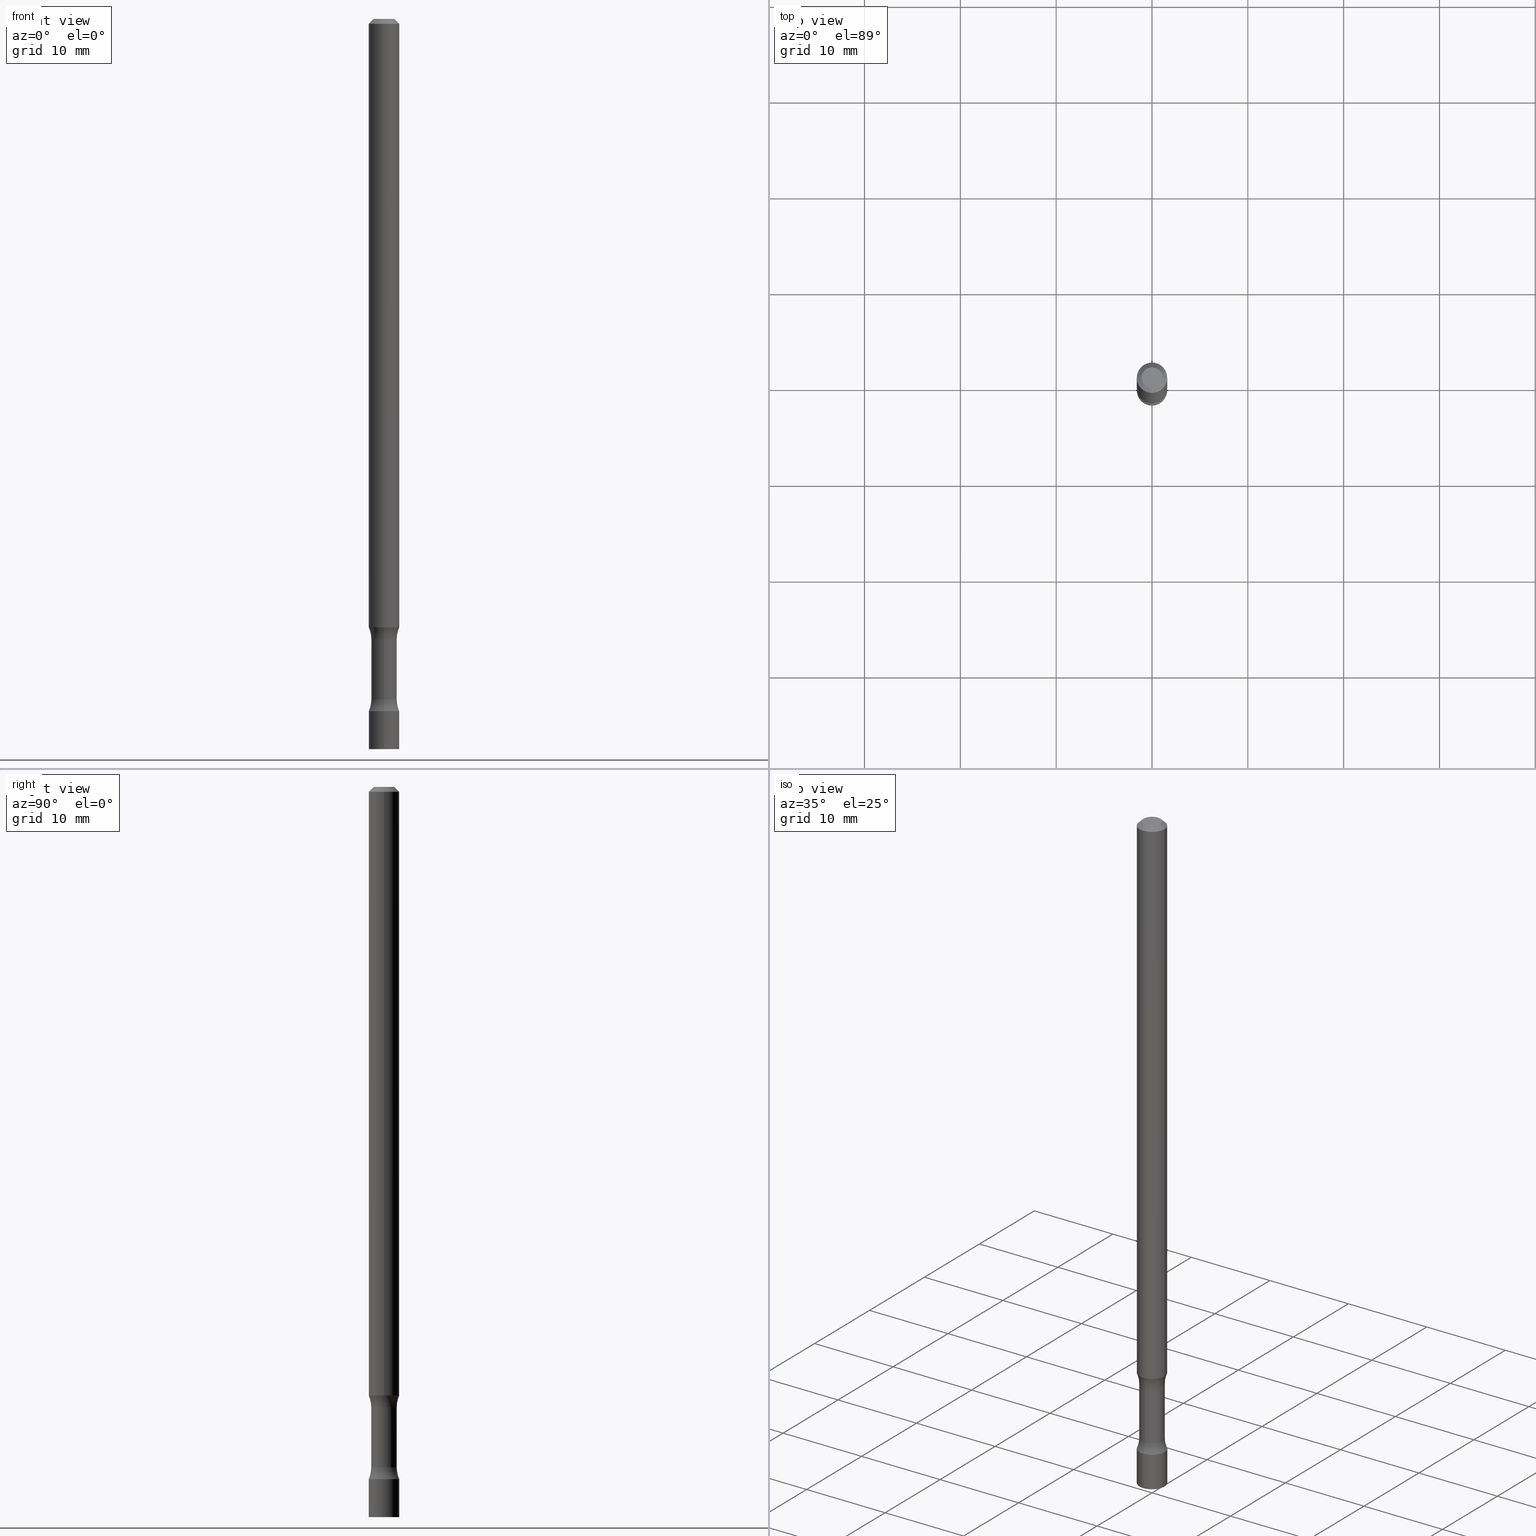
[diagram: canonical four-view strip — front | top / right | iso, engineering-drawing reading convention]
A machine part, canonical four-view strip (front | top / right | iso — engineering-drawing reading convention). The complete STEP part file that produces these views, byte-faithful:
ISO-10303-21;
HEADER;
FILE_DESCRIPTION (( 'STEP AP203' ),
    '1' );
FILE_NAME ('32725.STEP',
    '2024-03-11T13:17:24',
    ( '' ),
    ( '' ),
    'SwSTEP 2.0',
    'SolidWorks 2023',
    '' );
FILE_SCHEMA (( 'CONFIG_CONTROL_DESIGN' ));
ENDSEC;

DATA;
#1 = AXIS2_PLACEMENT_3D ( 'NONE', #157, #485, #435 ) ;
#2 = AXIS2_PLACEMENT_3D ( 'NONE', #331, #494, #288 ) ;
#3 = LINE ( 'NONE', #73, #339 ) ;
#4 = ORIENTED_EDGE ( 'NONE', *, *, #465, .F. ) ;
#5 = CARTESIAN_POINT ( 'NONE',  ( -4.287811248606471121E-16, -0.06250000000000692502, -2.499999999999999556 ) ) ;
#6 = ORIENTED_EDGE ( 'NONE', *, *, #419, .F. ) ;
#7 = DIRECTION ( 'NONE',  ( 6.982962677686266711E-15, 1.000000000000000000, -6.288230848226830672E-15 ) ) ;
#8 = DIRECTION ( 'NONE',  ( -2.438088387897960049E-29, 3.491481338843145188E-15, 1.000000000000000000 ) ) ;
#9 = DIRECTION ( 'NONE',  ( 4.925090618987720607E-30, -6.288230848226830672E-15, -1.000000000000000000 ) ) ;
#10 = AXIS2_PLACEMENT_3D ( 'NONE', #463, #468, #283 ) ;
#11 = LINE ( 'NONE', #237, #386 ) ;
#12 = CARTESIAN_POINT ( 'NONE',  ( -0.06249999999999984734, 4.440892098500615315E-16, -3.074334431409308406E-30 ) ) ;
#13 = MANIFOLD_SOLID_BREP ( 'Body-Move/Copy2[4]', #159 ) ;
#14 = MANIFOLD_SOLID_BREP ( 'Body-Move/Copy2[2]', #343 ) ;
#15 = CARTESIAN_POINT ( 'NONE',  ( 4.440892098501351914E-16, 0.06249999999998967493, -3.000000000000000444 ) ) ;
#16 = EDGE_LOOP ( 'NONE', ( #140, #335, #356, #487 ) ) ;
#17 = CARTESIAN_POINT ( 'NONE',  ( 6.774435598487342203E-29, -7.782452287889203517E-15, -2.500000000000000000 ) ) ;
#18 = ORIENTED_EDGE ( 'NONE', *, *, #465, .T. ) ;
#19 = DIRECTION ( 'NONE',  ( 2.441718902161944862E-29, -3.496851414835638223E-15, -1.000000000000000000 ) ) ;
#20 = ORIENTED_EDGE ( 'NONE', *, *, #276, .T. ) ;
#21 = APPLICATION_CONTEXT ( 'configuration controlled 3d designs of mechanical parts and assemblies' ) ;
#22 = EDGE_CURVE ( 'NONE', #36, #126, #47, .T. ) ;
#23 = DIRECTION ( 'NONE',  ( 4.925090618987720607E-30, -6.288230848226830672E-15, -1.000000000000000000 ) ) ;
#24 = CARTESIAN_POINT ( 'NONE',  ( 6.774435598487342203E-29, -7.782452287889203517E-15, -2.500000000000000000 ) ) ;
#25 = CIRCLE ( 'NONE', #392, 0.06250000000000016653 ) ;
#26 = CIRCLE ( 'NONE', #70, 0.06250000000000016653 ) ;
#27 = VERTEX_POINT ( 'NONE', #400 ) ;
#28 = PERSON_AND_ORGANIZATION ( #409, #289 ) ;
#29 = CARTESIAN_POINT ( 'NONE',  ( -3.601761448829314848E-16, -0.05250000000001038558, -2.999999999999999556 ) ) ;
#30 = ORIENTED_EDGE ( 'NONE', *, *, #282, .F. ) ;
#31 =( CONVERSION_BASED_UNIT ( 'INCH', #382 ) LENGTH_UNIT ( ) NAMED_UNIT ( #222 ) );
#32 = EDGE_CURVE ( 'NONE', #105, #263, #11, .T. ) ;
#33 = COORDINATED_UNIVERSAL_TIME_OFFSET ( 5, 0, .BEHIND. ) ;
#34 = PERSON_AND_ORGANIZATION ( #409, #289 ) ;
#35 = DIRECTION ( 'NONE',  ( 4.925090618987720607E-30, -6.288230848226830672E-15, -1.000000000000000000 ) ) ;
#36 = VERTEX_POINT ( 'NONE', #88 ) ;
#37 = PERSON_AND_ORGANIZATION ( #409, #289 ) ;
#38 = CIRCLE ( 'NONE', #69, 0.04249999999999975325 ) ;
#39 = CARTESIAN_POINT ( 'NONE',  ( -1.217738394604372881E-15, -0.1775000000000072353, -2.548989794855662794 ) ) ;
#40 = ORIENTED_EDGE ( 'NONE', *, *, #378, .F. ) ;
#41 = PLANE ( 'NONE',  #181 ) ;
#42 = CYLINDRICAL_SURFACE ( 'NONE', #490, 0.06249999999999984734 ) ;
#43 = DIRECTION ( 'NONE',  ( 6.982962677686266711E-15, 1.000000000000000000, -6.288230848226830672E-15 ) ) ;
#44 = DIRECTION ( 'NONE',  ( 6.982962677686265922E-15, 1.000000000000000000, -6.288230848226830672E-15 ) ) ;
#45 = ADVANCED_FACE ( 'NONE', ( #495 ), #185, .F. ) ;
#46 = ORIENTED_EDGE ( 'NONE', *, *, #282, .T. ) ;
#47 = CIRCLE ( 'NONE', #251, 0.1249999999999999584 ) ;
#48 = CIRCLE ( 'NONE', #308, 0.06249999999999920203 ) ;
#49 = DIRECTION ( 'NONE',  ( -2.445468806185136877E-29, 3.491481338843145188E-15, 1.000000000000000000 ) ) ;
#50 = AXIS2_PLACEMENT_3D ( 'NONE', #127, #453, #361 ) ;
#51 = AXIS2_PLACEMENT_3D ( 'NONE', #459, #94, #338 ) ;
#52 = ORIENTED_EDGE ( 'NONE', *, *, #200, .T. ) ;
#53 = EDGE_LOOP ( 'NONE', ( #196, #20, #497, #362 ) ) ;
#54 = CARTESIAN_POINT ( 'NONE',  ( 0.000000000000000000, 0.000000000000000000, 0.000000000000000000 ) ) ;
#55 = DIRECTION ( 'NONE',  ( 0.7071067811865471286, -7.319954787623254468E-15, -0.7071067811865479058 ) ) ;
#56 = CYLINDRICAL_SURFACE ( 'NONE', #239, 0.06249999999999984734 ) ;
#57 = CIRCLE ( 'NONE', #278, 0.06250000000000016653 ) ;
#58 = VECTOR ( 'NONE', #205, 39.37007874015748143 ) ;
#59 = EDGE_CURVE ( 'NONE', #248, #436, #38, .T. ) ;
#60 = CARTESIAN_POINT ( 'NONE',  ( 0.04249999999999975325, -3.950909582714350189E-16, -5.122214988120251946E-17 ) ) ;
#61 = DIRECTION ( 'NONE',  ( 6.982962677686266711E-15, 1.000000000000000000, -8.741913579725618633E-15 ) ) ;
#62 = COORDINATED_UNIVERSAL_TIME_OFFSET ( 5, 0, .BEHIND. ) ;
#63 = AXIS2_PLACEMENT_3D ( 'NONE', #143, #229, #393 ) ;
#64 = MECHANICAL_CONTEXT ( 'NONE', #21, 'mechanical' ) ;
#65 = VERTEX_POINT ( 'NONE', #189 ) ;
#66 = ADVANCED_FACE ( 'NONE', ( #398 ), #429, .F. ) ;
#67 = PERSON_AND_ORGANIZATION_ROLE ( 'creator' ) ;
#68 = DIRECTION ( 'NONE',  ( -1.000000000000000000, 6.982962677686265922E-15, -4.876176775795935793E-29 ) ) ;
#69 = AXIS2_PLACEMENT_3D ( 'NONE', #312, #110, #74 ) ;
#70 = AXIS2_PLACEMENT_3D ( 'NONE', #492, #420, #61 ) ;
#71 = APPROVAL_PERSON_ORGANIZATION ( #139, #359, #501 ) ;
#72 = ORIENTED_EDGE ( 'NONE', *, *, #32, .T. ) ;
#73 = CARTESIAN_POINT ( 'NONE',  ( -4.364351673553928527E-16, -0.06250000000000016653, 2.185532134272280299E-16 ) ) ;
#74 = DIRECTION ( 'NONE',  ( 1.000000000000000000, -6.982962677686265922E-15, 4.870577812114112753E-29 ) ) ;
#75 = APPROVAL_STATUS ( 'not_yet_approved' ) ;
#76 = AXIS2_PLACEMENT_3D ( 'NONE', #352, #275, #80 ) ;
#77 =( GEOMETRIC_REPRESENTATION_CONTEXT ( 3 ) GLOBAL_UNCERTAINTY_ASSIGNED_CONTEXT ( ( #414 ) ) GLOBAL_UNIT_ASSIGNED_CONTEXT ( ( #31, #260, #427 ) ) REPRESENTATION_CONTEXT ( 'NONE', 'WORKASPACE' ) );
#78 = DIRECTION ( 'NONE',  ( -2.445468806185136597E-29, 3.491481338843145583E-15, 1.000000000000000000 ) ) ;
#79 = APPROVAL_ROLE ( '' ) ;
#80 = DIRECTION ( 'NONE',  ( -6.982962677686266711E-15, -1.000000000000000000, 3.496851414835639012E-15 ) ) ;
#81 = CARTESIAN_POINT ( 'NONE',  ( 0.06249999999999967387, -4.986107516375813584E-16, -0.02000000000000000042 ) ) ;
#82 = EDGE_LOOP ( 'NONE', ( #93, #130 ) ) ;
#83 = EDGE_LOOP ( 'NONE', ( #18, #503 ) ) ;
#84 = VECTOR ( 'NONE', #202, 39.37007874015748143 ) ;
#85 = CYLINDRICAL_SURFACE ( 'NONE', #170, 0.06250000000000016653 ) ;
#86 = CARTESIAN_POINT ( 'NONE',  ( 4.440892098501371635E-16, 0.06249999999999023004, -2.843800000000000328 ) ) ;
#87 = LINE ( 'NONE', #363, #84 ) ;
#88 = CARTESIAN_POINT ( 'NONE',  ( 4.364351673554629134E-16, 0.06249999999999029943, -2.843800000000000772 ) ) ;
#89 = ORIENTED_EDGE ( 'NONE', *, *, #369, .T. ) ;
#90 = PLANE ( 'NONE',  #244 ) ;
#91 = AXIS2_PLACEMENT_3D ( 'NONE', #321, #437, #7 ) ;
#92 = VERTEX_POINT ( 'NONE', #351 ) ;
#93 = ORIENTED_EDGE ( 'NONE', *, *, #394, .F. ) ;
#94 = DIRECTION ( 'NONE',  ( -2.441718902161944862E-29, 3.496851414835638617E-15, 1.000000000000000000 ) ) ;
#95 = ORIENTED_EDGE ( 'NONE', *, *, #147, .F. ) ;
#96 = CARTESIAN_POINT ( 'NONE',  ( 6.954424191029292150E-29, -9.929074631402139706E-15, -2.843800000000000328 ) ) ;
#97 = ORIENTED_EDGE ( 'NONE', *, *, #147, .T. ) ;
#98 = APPLICATION_PROTOCOL_DEFINITION ( 'international standard', 'config_control_design', 1994, #21 ) ;
#99 = VECTOR ( 'NONE', #232, 39.37007874015748143 ) ;
#100 = CC_DESIGN_SECURITY_CLASSIFICATION ( #220, ( #187 ) ) ;
#101 = DATE_AND_TIME ( #472, #203 ) ;
#102 = FACE_OUTER_BOUND ( 'NONE', #421, .T. ) ;
#103 = DATE_TIME_ROLE ( 'creation_date' ) ;
#104 = AXIS2_PLACEMENT_3D ( 'NONE', #233, #269, #43 ) ;
#105 = VERTEX_POINT ( 'NONE', #274 ) ;
#106 = AXIS2_PLACEMENT_3D ( 'NONE', #119, #447, #235 ) ;
#107 = SECURITY_CLASSIFICATION_LEVEL ( 'unclassified' ) ;
#108 = PRODUCT ( '32725', '32725', '', ( #64 ) ) ;
#109 = CARTESIAN_POINT ( 'NONE',  ( 4.890937612370273159E-31, -6.982962677686291609E-17, -0.02000000000000000042 ) ) ;
#110 = DIRECTION ( 'NONE',  ( -2.445468806185136597E-29, 3.491481338843145583E-15, 1.000000000000000000 ) ) ;
#111 = DIRECTION ( 'NONE',  ( 2.445468806185136597E-29, -3.491481338843145583E-15, -1.000000000000000000 ) ) ;
#112 = FACE_OUTER_BOUND ( 'NONE', #372, .T. ) ;
#113 = DIRECTION ( 'NONE',  ( 4.925090618987715002E-30, -6.288230848226830672E-15, -1.000000000000000000 ) ) ;
#114 = CIRCLE ( 'NONE', #153, 0.05249999999999904049 ) ;
#115 = AXIS2_PLACEMENT_3D ( 'NONE', #161, #207, #245 ) ;
#116 = DIRECTION ( 'NONE',  ( 1.000000000000000000, -6.982962677686266711E-15, 4.876176775795935793E-29 ) ) ;
#117 = ADVANCED_FACE ( 'NONE', ( #478 ), #353, .T. ) ;
#118 = APPROVAL ( #75, 'UNSPECIFIED' ) ;
#119 = CARTESIAN_POINT ( 'NONE',  ( 6.113672015462842613E-29, -8.728703347107864943E-15, -2.500000000000000000 ) ) ;
#120 = AXIS2_PLACEMENT_3D ( 'NONE', #152, #319, #444 ) ;
#121 = AXIS2_PLACEMENT_3D ( 'NONE', #39, #188, #348 ) ;
#122 = DIRECTION ( 'NONE',  ( -0.7071067811865471286, 2.468850131082252722E-15, -0.7071067811865479058 ) ) ;
#123 = CARTESIAN_POINT ( 'NONE',  ( 7.020690129436727953E-29, -1.092656771200262122E-14, -3.000000000000000444 ) ) ;
#124 = CARTESIAN_POINT ( 'NONE',  ( 0.000000000000000000, 0.000000000000000000, 0.000000000000000000 ) ) ;
#125 = EDGE_CURVE ( 'NONE', #322, #92, #327, .T. ) ;
#126 = VERTEX_POINT ( 'NONE', #383 ) ;
#127 = CARTESIAN_POINT ( 'NONE',  ( 6.954424191029292150E-29, -9.929074631402139706E-15, -2.843800000000000328 ) ) ;
#128 = CIRCLE ( 'NONE', #10, 0.06250000000000016653 ) ;
#129 = CIRCLE ( 'NONE', #51, 0.06250000000000016653 ) ;
#130 = ORIENTED_EDGE ( 'NONE', *, *, #368, .F. ) ;
#131 = PLANE ( 'NONE',  #210 ) ;
#132 = ORIENTED_EDGE ( 'NONE', *, *, #217, .T. ) ;
#133 = PERSON_AND_ORGANIZATION_ROLE ( 'design_supplier' ) ;
#134 = EDGE_CURVE ( 'NONE', #480, #433, #25, .T. ) ;
#135 = ORIENTED_EDGE ( 'NONE', *, *, #378, .T. ) ;
#136 = APPROVAL_DATE_TIME ( #101, #346 ) ;
#137 = ADVANCED_FACE ( 'NONE', ( #102 ), #464, .F. ) ;
#138 = ORIENTED_EDGE ( 'NONE', *, *, #200, .F. ) ;
#139 = PERSON_AND_ORGANIZATION ( #409, #289 ) ;
#140 = ORIENTED_EDGE ( 'NONE', *, *, #432, .F. ) ;
#141 = DIRECTION ( 'NONE',  ( 0.000000000000000000, 0.000000000000000000, 1.000000000000000000 ) ) ;
#142 = FACE_OUTER_BOUND ( 'NONE', #334, .T. ) ;
#143 = CARTESIAN_POINT ( 'NONE',  ( 6.919632296061163578E-29, -9.636286914249898201E-15, -2.794810205144336201 ) ) ;
#144 = SHAPE_DEFINITION_REPRESENTATION ( #341, #309 ) ;
#145 = DIRECTION ( 'NONE',  ( 6.982962677686266711E-15, 1.000000000000000000, -8.741913579725618633E-15 ) ) ;
#146 = EDGE_CURVE ( 'NONE', #65, #27, #209, .T. ) ;
#147 = EDGE_CURVE ( 'NONE', #27, #92, #379, .T. ) ;
#148 = ORIENTED_EDGE ( 'NONE', *, *, #368, .T. ) ;
#149 = CARTESIAN_POINT ( 'NONE',  ( 6.930003138792703270E-29, -9.621435277186618762E-15, -2.794810205144335757 ) ) ;
#150 = ORIENTED_EDGE ( 'NONE', *, *, #295, .T. ) ;
#151 = DIRECTION ( 'NONE',  ( 1.000000000000000000, -6.982962677686265922E-15, 4.876176775795935793E-29 ) ) ;
#152 = CARTESIAN_POINT ( 'NONE',  ( 7.020690129436727953E-29, -1.092656771200262122E-14, -3.000000000000000444 ) ) ;
#153 = AXIS2_PLACEMENT_3D ( 'NONE', #479, #261, #226 ) ;
#154 = DIRECTION ( 'NONE',  ( -2.445468806185136597E-29, 3.491481338843145583E-15, 1.000000000000000000 ) ) ;
#155 = ADVANCED_FACE ( 'NONE', ( #112 ), #41, .F. ) ;
#156 = ADVANCED_FACE ( 'NONE', ( #264 ), #201, .F. ) ;
#157 = CARTESIAN_POINT ( 'NONE',  ( 4.890937612370273159E-31, -6.982962677686291609E-17, -0.02000000000000000042 ) ) ;
#158 = CARTESIAN_POINT ( 'NONE',  ( -0.06249999999999967387, 3.666055405785264484E-16, -0.02000000000000000042 ) ) ;
#159 = CLOSED_SHELL ( 'NONE', ( #117, #156, #179, #66, #45, #381, #253, #406 ) ) ;
#160 = CIRCLE ( 'NONE', #318, 0.06249999999999967387 ) ;
#161 = CARTESIAN_POINT ( 'NONE',  ( 1.252621697202263706E-45, -1.788411804456536750E-31, -5.122214988120493535E-17 ) ) ;
#162 = DIRECTION ( 'NONE',  ( -1.000000000000000000, 6.982962677686265922E-15, -4.883557194083112901E-29 ) ) ;
#163 = EDGE_CURVE ( 'NONE', #417, #311, #128, .T. ) ;
#164 = CARTESIAN_POINT ( 'NONE',  ( 7.325156706485834866E-29, -1.049055424450691625E-14, -3.000000000000000444 ) ) ;
#165 = ORIENTED_EDGE ( 'NONE', *, *, #350, .F. ) ;
#166 = FACE_OUTER_BOUND ( 'NONE', #16, .T. ) ;
#167 = VERTEX_POINT ( 'NONE', #413 ) ;
#168 = DIRECTION ( 'NONE',  ( 6.982962677686266711E-15, 1.000000000000000000, -8.741913579725754317E-15 ) ) ;
#169 = AXIS2_PLACEMENT_3D ( 'NONE', #252, #385, #214 ) ;
#170 = AXIS2_PLACEMENT_3D ( 'NONE', #54, #240, #408 ) ;
#171 = EDGE_CURVE ( 'NONE', #433, #480, #287, .T. ) ;
#172 = DIRECTION ( 'NONE',  ( 2.438088387897960049E-29, -3.491481338843145188E-15, -1.000000000000000000 ) ) ;
#173 = ORIENTED_EDGE ( 'NONE', *, *, #451, .F. ) ;
#174 = APPROVAL_STATUS ( 'not_yet_approved' ) ;
#175 = CARTESIAN_POINT ( 'NONE',  ( 6.798563516394318828E-29, -8.090511427148895302E-15, -2.548989794855664570 ) ) ;
#176 = EDGE_LOOP ( 'NONE', ( #324, #391, #461, #221 ) ) ;
#177 = DATE_AND_TIME ( #208, #423 ) ;
#178 = ORIENTED_EDGE ( 'NONE', *, *, #276, .F. ) ;
#179 = ADVANCED_FACE ( 'NONE', ( #142 ), #395, .F. ) ;
#180 = CARTESIAN_POINT ( 'NONE',  ( 6.930003138792703270E-29, -9.621435277186618762E-15, -2.794810205144335757 ) ) ;
#181 = AXIS2_PLACEMENT_3D ( 'NONE', #228, #8, #151 ) ;
#182 = COORDINATED_UNIVERSAL_TIME_OFFSET ( 5, 0, .BEHIND. ) ;
#183 = DIRECTION ( 'NONE',  ( 6.982962677686265922E-15, 1.000000000000000000, -6.288230848226830672E-15 ) ) ;
#184 = ORIENTED_EDGE ( 'NONE', *, *, #290, .F. ) ;
#185 = PLANE ( 'NONE',  #457 ) ;
#186 = CIRCLE ( 'NONE', #438, 0.06250000000000001388 ) ;
#187 = PRODUCT_DEFINITION_FORMATION_WITH_SPECIFIED_SOURCE ( 'ANY', '', #108, .NOT_KNOWN. ) ;
#188 = DIRECTION ( 'NONE',  ( 1.000000000000000000, -6.860497997771530774E-15, 4.806548576277306699E-29 ) ) ;
#189 = CARTESIAN_POINT ( 'NONE',  ( 3.666055405785901982E-16, 0.05249999999999094280, -2.548989794855665014 ) ) ;
#190 = CYLINDRICAL_SURFACE ( 'NONE', #76, 0.06250000000000016653 ) ;
#191 = CARTESIAN_POINT ( 'NONE',  ( 6.113672015462842613E-29, -8.728703347107864943E-15, -2.500000000000000000 ) ) ;
#192 = ADVANCED_FACE ( 'NONE', ( #234 ), #403, .T. ) ;
#193 = CIRCLE ( 'NONE', #1, 0.06249999999999967387 ) ;
#194 = VECTOR ( 'NONE', #55, 39.37007874015748143 ) ;
#195 = FACE_OUTER_BOUND ( 'NONE', #452, .T. ) ;
#196 = ORIENTED_EDGE ( 'NONE', *, *, #266, .T. ) ;
#197 = FACE_OUTER_BOUND ( 'NONE', #212, .T. ) ;
#198 = EDGE_LOOP ( 'NONE', ( #40, #255, #370, #273 ) ) ;
#199 = LINE ( 'NONE', #488, #58 ) ;
#200 = EDGE_CURVE ( 'NONE', #36, #322, #57, .T. ) ;
#201 = TOROIDAL_SURFACE ( 'NONE', #469, 0.1774999999999997413, 0.1249999999999999584 ) ;
#202 = DIRECTION ( 'NONE',  ( 4.925090618987720607E-30, -6.288230848226830672E-15, -1.000000000000000000 ) ) ;
#203 = LOCAL_TIME ( 9, 17, 24.00000000000000000, #33 ) ;
#204 = DESIGN_CONTEXT ( 'detailed design', #426, 'design' ) ;
#205 = DIRECTION ( 'NONE',  ( -2.441718902161944862E-29, 3.496851414835638223E-15, 1.000000000000000000 ) ) ;
#206 = EDGE_CURVE ( 'NONE', #167, #263, #193, .T. ) ;
#207 = DIRECTION ( 'NONE',  ( -2.445468806185136597E-29, 3.491481338843145583E-15, 1.000000000000000000 ) ) ;
#208 = CALENDAR_DATE ( 2024, 11, 3 ) ;
#209 = CIRCLE ( 'NONE', #458, 0.05249999999999904049 ) ;
#210 = AXIS2_PLACEMENT_3D ( 'NONE', #499, #292, #462 ) ;
#211 = DIRECTION ( 'NONE',  ( 6.982962677686265133E-15, 1.000000000000000000, -1.040703997586405078E-14 ) ) ;
#212 = EDGE_LOOP ( 'NONE', ( #52, #135 ) ) ;
#213 = PERSON_AND_ORGANIZATION ( #409, #289 ) ;
#214 = DIRECTION ( 'NONE',  ( 6.860497997771531562E-15, 1.000000000000000000, 0.000000000000000000 ) ) ;
#215 = VERTEX_POINT ( 'NONE', #5 ) ;
#216 = APPLICATION_PROTOCOL_DEFINITION ( 'international standard', 'config_control_design', 1994, #426 ) ;
#217 = EDGE_CURVE ( 'NONE', #263, #167, #160, .T. ) ;
#218 = EDGE_CURVE ( 'NONE', #126, #92, #345, .T. ) ;
#219 = VECTOR ( 'NONE', #122, 39.37007874015748143 ) ;
#220 = SECURITY_CLASSIFICATION ( '', '', #107 ) ;
#221 = ORIENTED_EDGE ( 'NONE', *, *, #394, .T. ) ;
#222 = DIMENSIONAL_EXPONENTS ( 1.000000000000000000, 0.000000000000000000, 0.000000000000000000, 0.000000000000000000, 0.000000000000000000, 0.000000000000000000, 0.000000000000000000 ) ;
#223 = EDGE_CURVE ( 'NONE', #92, #126, #483, .T. ) ;
#224 = EDGE_LOOP ( 'NONE', ( #294, #138, #500, #466 ) ) ;
#225 = ADVANCED_FACE ( 'NONE', ( #315 ), #42, .T. ) ;
#226 = DIRECTION ( 'NONE',  ( 6.982962677686265133E-15, 1.000000000000000000, -1.040703997586405078E-14 ) ) ;
#227 = DIRECTION ( 'NONE',  ( -6.982962677686265922E-15, -1.000000000000000000, 0.000000000000000000 ) ) ;
#228 = CARTESIAN_POINT ( 'NONE',  ( 6.113672015462842613E-29, -8.728703347107864943E-15, -2.500000000000000000 ) ) ;
#229 = DIRECTION ( 'NONE',  ( 4.925090618987720607E-30, -6.288230848226830672E-15, -1.000000000000000000 ) ) ;
#230 = ORIENTED_EDGE ( 'NONE', *, *, #206, .F. ) ;
#231 = CC_DESIGN_PERSON_AND_ORGANIZATION_ASSIGNMENT ( #213, #296, ( #220 ) ) ;
#232 = DIRECTION ( 'NONE',  ( 4.925090618987720607E-30, -6.288230848226830672E-15, -1.000000000000000000 ) ) ;
#233 = CARTESIAN_POINT ( 'NONE',  ( 6.805766808029866251E-29, -8.080195903540888731E-15, -2.548989794855663682 ) ) ;
#234 = FACE_OUTER_BOUND ( 'NONE', #326, .T. ) ;
#235 = DIRECTION ( 'NONE',  ( 1.000000000000000000, -6.982962677686276966E-15, 0.000000000000000000 ) ) ;
#236 = ORIENTED_EDGE ( 'NONE', *, *, #134, .F. ) ;
#237 = CARTESIAN_POINT ( 'NONE',  ( 0.06249999999999984734, -4.364351673553905847E-16, 3.047610484872452514E-30 ) ) ;
#238 = ORIENTED_EDGE ( 'NONE', *, *, #369, .F. ) ;
#239 = AXIS2_PLACEMENT_3D ( 'NONE', #124, #241, #450 ) ;
#240 = DIRECTION ( 'NONE',  ( -2.441718902161944862E-29, 3.496851414835638617E-15, 1.000000000000000000 ) ) ;
#241 = DIRECTION ( 'NONE',  ( -2.445468806185136597E-29, 3.491481338843145583E-15, 1.000000000000000000 ) ) ;
#242 = ADVANCED_FACE ( 'NONE', ( #441 ), #190, .T. ) ;
#243 = CYLINDRICAL_SURFACE ( 'NONE', #448, 0.05249999999999945682 ) ;
#244 = AXIS2_PLACEMENT_3D ( 'NONE', #96, #19, #412 ) ;
#245 = DIRECTION ( 'NONE',  ( 1.000000000000000000, -6.982962677686265922E-15, 4.870577812114112753E-29 ) ) ;
#246 = VERTEX_POINT ( 'NONE', #323 ) ;
#247 = FACE_OUTER_BOUND ( 'NONE', #502, .T. ) ;
#248 = VERTEX_POINT ( 'NONE', #401 ) ;
#249 = DIRECTION ( 'NONE',  ( 6.982962677686266711E-15, 1.000000000000000000, -8.741913579725754317E-15 ) ) ;
#250 = EDGE_LOOP ( 'NONE', ( #474, #97, #425, #238 ) ) ;
#251 = AXIS2_PLACEMENT_3D ( 'NONE', #442, #491, #227 ) ;
#252 = CARTESIAN_POINT ( 'NONE',  ( -1.217738394604375642E-15, -0.1775000000000093725, -2.794810205144334425 ) ) ;
#253 = ADVANCED_FACE ( 'NONE', ( #358 ), #422, .F. ) ;
#254 = EDGE_CURVE ( 'NONE', #360, #105, #186, .T. ) ;
#255 = ORIENTED_EDGE ( 'NONE', *, *, #125, .T. ) ;
#256 = PERSON_AND_ORGANIZATION ( #409, #289 ) ;
#257 = CARTESIAN_POINT ( 'NONE',  ( 2.967759138016645800E-16, 0.04249999999999975325, -1.739990318414352692E-16 ) ) ;
#258 = COORDINATED_UNIVERSAL_TIME_OFFSET ( 5, 0, .BEHIND. ) ;
#259 = AXIS2_PLACEMENT_3D ( 'NONE', #277, #271, #344 ) ;
#260 =( NAMED_UNIT ( * ) PLANE_ANGLE_UNIT ( ) SI_UNIT ( $, .RADIAN. ) );
#261 = DIRECTION ( 'NONE',  ( 4.925090618987720607E-30, -6.288230848226830672E-15, -1.000000000000000000 ) ) ;
#262 = EDGE_LOOP ( 'NONE', ( #236, #431 ) ) ;
#263 = VERTEX_POINT ( 'NONE', #81 ) ;
#264 = FACE_OUTER_BOUND ( 'NONE', #198, .T. ) ;
#265 = CARTESIAN_POINT ( 'NONE',  ( 4.890937612370273159E-31, -6.982962677686291609E-17, -0.02000000000000000042 ) ) ;
#266 = EDGE_CURVE ( 'NONE', #105, #360, #504, .T. ) ;
#267 = VECTOR ( 'NONE', #49, 39.37007874015748143 ) ;
#268 = CONICAL_SURFACE ( 'NONE', #2, 0.06249999999999967387, 0.7853981633974477239 ) ;
#269 = DIRECTION ( 'NONE',  ( 4.925090618987720607E-30, -6.288230848226830672E-15, -1.000000000000000000 ) ) ;
#270 = COORDINATED_UNIVERSAL_TIME_OFFSET ( 5, 0, .BEHIND. ) ;
#271 = DIRECTION ( 'NONE',  ( 4.925090618987720607E-30, -6.288230848226830672E-15, -1.000000000000000000 ) ) ;
#272 = CC_DESIGN_PERSON_AND_ORGANIZATION_ASSIGNMENT ( #303, #342, ( #108 ) ) ;
#273 = ORIENTED_EDGE ( 'NONE', *, *, #22, .F. ) ;
#274 = CARTESIAN_POINT ( 'NONE',  ( 0.06250000000000001388, -9.165138514463256612E-15, -2.500000000000000000 ) ) ;
#275 = DIRECTION ( 'NONE',  ( -2.441718902161944862E-29, 3.496851414835638617E-15, 1.000000000000000000 ) ) ;
#276 = EDGE_CURVE ( 'NONE', #360, #167, #402, .T. ) ;
#277 = CARTESIAN_POINT ( 'NONE',  ( 6.919632296061163578E-29, -9.636286914249898201E-15, -2.794810205144336201 ) ) ;
#278 = AXIS2_PLACEMENT_3D ( 'NONE', #482, #9, #145 ) ;
#279 = ADVANCED_FACE ( 'NONE', ( #195 ), #85, .T. ) ;
#280 = PLANE ( 'NONE',  #50 ) ;
#281 = FACE_OUTER_BOUND ( 'NONE', #83, .T. ) ;
#282 = EDGE_CURVE ( 'NONE', #480, #311, #3, .T. ) ;
#283 = DIRECTION ( 'NONE',  ( -6.982962677686266711E-15, -1.000000000000000000, 0.000000000000000000 ) ) ;
#284 = CARTESIAN_POINT ( 'NONE',  ( -4.287811248606526834E-16, -0.06250000000001017242, -2.843799999999999883 ) ) ;
#285 = CC_DESIGN_PERSON_AND_ORGANIZATION_ASSIGNMENT ( #37, #133, ( #187 ) ) ;
#286 = ORIENTED_EDGE ( 'NONE', *, *, #223, .F. ) ;
#287 = CIRCLE ( 'NONE', #357, 0.06250000000000016653 ) ;
#288 = DIRECTION ( 'NONE',  ( -1.000000000000000000, 6.982962677686265922E-15, 0.000000000000000000 ) ) ;
#289 = ORGANIZATION ( 'UNSPECIFIED', 'UNSPECIFIED', '' ) ;
#290 = EDGE_CURVE ( 'NONE', #27, #65, #114, .T. ) ;
#291 = ORIENTED_EDGE ( 'NONE', *, *, #254, .F. ) ;
#292 = DIRECTION ( 'NONE',  ( 2.441718902161944862E-29, -3.496851414835638223E-15, -1.000000000000000000 ) ) ;
#293 = DIRECTION ( 'NONE',  ( -2.441718902161944862E-29, 3.496851414835638617E-15, 1.000000000000000000 ) ) ;
#294 = ORIENTED_EDGE ( 'NONE', *, *, #125, .F. ) ;
#295 = EDGE_CURVE ( 'NONE', #27, #215, #415, .T. ) ;
#296 = PERSON_AND_ORGANIZATION_ROLE ( 'classification_officer' ) ;
#297 = EDGE_LOOP ( 'NONE', ( #337, #316, #4, #30 ) ) ;
#298 = CC_DESIGN_PERSON_AND_ORGANIZATION_ASSIGNMENT ( #473, #428, ( #187 ) ) ;
#299 = CARTESIAN_POINT ( 'NONE',  ( 7.325156706485834866E-29, -1.049055424450691625E-14, -3.000000000000000444 ) ) ;
#300 = CARTESIAN_POINT ( 'NONE',  ( 0.000000000000000000, 0.000000000000000000, 0.000000000000000000 ) ) ;
#301 = ORIENTED_EDGE ( 'NONE', *, *, #411, .T. ) ;
#302 = CC_DESIGN_DATE_AND_TIME_ASSIGNMENT ( #177, #377, ( #220 ) ) ;
#303 = PERSON_AND_ORGANIZATION ( #409, #289 ) ;
#304 = DIRECTION ( 'NONE',  ( -6.982962677686266711E-15, -1.000000000000000000, 0.000000000000000000 ) ) ;
#305 = ADVANCED_FACE ( 'NONE', ( #281 ), #90, .F. ) ;
#306 = CALENDAR_DATE ( 2024, 11, 3 ) ;
#307 = AXIS2_PLACEMENT_3D ( 'NONE', #257, #172, #68 ) ;
#308 = AXIS2_PLACEMENT_3D ( 'NONE', #24, #23, #168 ) ;
#309 = ADVANCED_BREP_SHAPE_REPRESENTATION ( '32725', ( #349, #14, #13, #439 ), #77 ) ;
#310 = DIRECTION ( 'NONE',  ( -2.441718902161944862E-29, 3.496851414835638223E-15, 1.000000000000000000 ) ) ;
#311 = VERTEX_POINT ( 'NONE', #493 ) ;
#312 = CARTESIAN_POINT ( 'NONE',  ( 1.252621697202263706E-45, -1.788411804456536750E-31, -5.122214988120493535E-17 ) ) ;
#313 = DIRECTION ( 'NONE',  ( 1.000000000000000000, -6.982962677686265922E-15, 0.000000000000000000 ) ) ;
#314 = APPROVAL_DATE_TIME ( #320, #118 ) ;
#315 = FACE_OUTER_BOUND ( 'NONE', #53, .T. ) ;
#316 = ORIENTED_EDGE ( 'NONE', *, *, #451, .T. ) ;
#317 = ADVANCED_FACE ( 'NONE', ( #325 ), #56, .T. ) ;
#318 = AXIS2_PLACEMENT_3D ( 'NONE', #265, #78, #313 ) ;
#319 = DIRECTION ( 'NONE',  ( 4.925090618987720607E-30, -6.288230848226830672E-15, -1.000000000000000000 ) ) ;
#320 = DATE_AND_TIME ( #354, #376 ) ;
#321 = CARTESIAN_POINT ( 'NONE',  ( 6.805766808029866251E-29, -8.080195903540888731E-15, -2.548989794855663682 ) ) ;
#322 = VERTEX_POINT ( 'NONE', #284 ) ;
#323 = CARTESIAN_POINT ( 'NONE',  ( 4.364351673554533485E-16, 0.06249999999999136108, -2.500000000000000444 ) ) ;
#324 = ORIENTED_EDGE ( 'NONE', *, *, #295, .F. ) ;
#325 = FACE_OUTER_BOUND ( 'NONE', #397, .T. ) ;
#326 = EDGE_LOOP ( 'NONE', ( #486, #440, #132, #165 ) ) ;
#327 = CIRCLE ( 'NONE', #169, 0.1249999999999999584 ) ;
#328 = CC_DESIGN_APPROVAL ( #118, ( #220 ) ) ;
#329 = DIRECTION ( 'NONE',  ( 4.925090618987720607E-30, -6.288230848226830672E-15, -1.000000000000000000 ) ) ;
#330 = DIRECTION ( 'NONE',  ( -6.982962677686265133E-15, -1.000000000000000000, 0.000000000000000000 ) ) ;
#331 = CARTESIAN_POINT ( 'NONE',  ( 4.890937612370273159E-31, -6.982962677686291609E-17, -0.02000000000000000042 ) ) ;
#332 = CC_DESIGN_DATE_AND_TIME_ASSIGNMENT ( #467, #103, ( #407 ) ) ;
#333 = LINE ( 'NONE', #418, #194 ) ;
#334 = EDGE_LOOP ( 'NONE', ( #184, #150, #148, #6 ) ) ;
#335 = ORIENTED_EDGE ( 'NONE', *, *, #59, .F. ) ;
#336 = CARTESIAN_POINT ( 'NONE',  ( -4.364351673553195379E-16, -0.06250000000001065814, -3.000000000000000444 ) ) ;
#337 = ORIENTED_EDGE ( 'NONE', *, *, #134, .T. ) ;
#338 = DIRECTION ( 'NONE',  ( -6.982962677686266711E-15, -1.000000000000000000, 0.000000000000000000 ) ) ;
#339 = VECTOR ( 'NONE', #310, 39.37007874015748143 ) ;
#340 = CALENDAR_DATE ( 2024, 11, 3 ) ;
#341 = PRODUCT_DEFINITION_SHAPE ( 'NONE', 'NONE',  #407 ) ;
#342 = PERSON_AND_ORGANIZATION_ROLE ( 'design_owner' ) ;
#343 = CLOSED_SHELL ( 'NONE', ( #225, #192, #460, #137, #155, #317 ) ) ;
#344 = DIRECTION ( 'NONE',  ( 6.982962677686265922E-15, 1.000000000000000000, -1.040703997586388670E-14 ) ) ;
#345 = CIRCLE ( 'NONE', #63, 0.05249999999999986622 ) ;
#346 = APPROVAL ( #475, 'UNSPECIFIED' ) ;
#347 = DIRECTION ( 'NONE',  ( 6.982962677686265922E-15, 1.000000000000000000, -6.288230848226830672E-15 ) ) ;
#348 = DIRECTION ( 'NONE',  ( 6.860497997771530774E-15, 1.000000000000000000, 0.000000000000000000 ) ) ;
#349 = MANIFOLD_SOLID_BREP ( 'Body-Move/Copy2[1]', #489 ) ;
#350 = EDGE_CURVE ( 'NONE', #248, #167, #410, .T. ) ;
#351 = CARTESIAN_POINT ( 'NONE',  ( -3.944786348717944754E-16, -0.05250000000000949740, -2.794810205144335757 ) ) ;
#352 = CARTESIAN_POINT ( 'NONE',  ( 0.000000000000000000, 0.000000000000000000, 0.000000000000000000 ) ) ;
#353 = CYLINDRICAL_SURFACE ( 'NONE', #120, 0.05249999999999945682 ) ;
#354 = CALENDAR_DATE ( 2024, 11, 3 ) ;
#355 = DIRECTION ( 'NONE',  ( 1.000000000000000000, -6.982962677686276966E-15, 0.000000000000000000 ) ) ;
#356 = ORIENTED_EDGE ( 'NONE', *, *, #350, .T. ) ;
#357 = AXIS2_PLACEMENT_3D ( 'NONE', #164, #389, #304 ) ;
#358 = FACE_OUTER_BOUND ( 'NONE', #224, .T. ) ;
#359 = APPROVAL ( #174, 'UNSPECIFIED' ) ;
#360 = VERTEX_POINT ( 'NONE', #416 ) ;
#361 = DIRECTION ( 'NONE',  ( -6.982962677686265922E-15, -1.000000000000000000, 6.288230848226830672E-15 ) ) ;
#362 = ORIENTED_EDGE ( 'NONE', *, *, #32, .F. ) ;
#363 = CARTESIAN_POINT ( 'NONE',  ( 3.666055405785953751E-16, 0.05249999999998852807, -3.000000000000000888 ) ) ;
#364 = PRODUCT_RELATED_PRODUCT_CATEGORY ( 'detail', '', ( #108 ) ) ;
#365 = AXIS2_PLACEMENT_3D ( 'NONE', #149, #445, #44 ) ;
#366 = LOCAL_TIME ( 9, 17, 24.00000000000000000, #258 ) ;
#367 = DIRECTION ( 'NONE',  ( 6.982962677686266711E-15, 1.000000000000000000, -1.040703997586396716E-14 ) ) ;
#368 = EDGE_CURVE ( 'NONE', #215, #246, #476, .T. ) ;
#369 = EDGE_CURVE ( 'NONE', #65, #126, #87, .T. ) ;
#370 = ORIENTED_EDGE ( 'NONE', *, *, #223, .T. ) ;
#371 = FACE_OUTER_BOUND ( 'NONE', #262, .T. ) ;
#372 = EDGE_LOOP ( 'NONE', ( #443, #291 ) ) ;
#373 = CARTESIAN_POINT ( 'NONE',  ( 1.239475875289374030E-15, 0.1774999999999910261, -2.548989794855665014 ) ) ;
#374 = DIRECTION ( 'NONE',  ( 4.925090618987720607E-30, -6.288230848226830672E-15, -1.000000000000000000 ) ) ;
#375 = CIRCLE ( 'NONE', #115, 0.04249999999999975325 ) ;
#376 = LOCAL_TIME ( 9, 17, 24.00000000000000000, #270 ) ;
#377 = DATE_TIME_ROLE ( 'classification_date' ) ;
#378 = EDGE_CURVE ( 'NONE', #322, #36, #26, .T. ) ;
#379 = LINE ( 'NONE', #29, #99 ) ;
#380 = ORIENTED_EDGE ( 'NONE', *, *, #59, .T. ) ;
#381 = ADVANCED_FACE ( 'NONE', ( #197 ), #280, .F. ) ;
#382 = LENGTH_MEASURE_WITH_UNIT ( LENGTH_MEASURE( 0.02539999999999999897 ), #470 );
#383 = CARTESIAN_POINT ( 'NONE',  ( 3.666055405785972486E-16, 0.05249999999999022809, -2.794810205144336646 ) ) ;
#384 = APPROVAL_ROLE ( '' ) ;
#385 = DIRECTION ( 'NONE',  ( 1.000000000000000000, -6.860497997771530774E-15, 4.806548576277306699E-29 ) ) ;
#386 = VECTOR ( 'NONE', #405, 39.37007874015748143 ) ;
#387 = AXIS2_PLACEMENT_3D ( 'NONE', #109, #111, #399 ) ;
#388 = APPROVAL_PERSON_ORGANIZATION ( #28, #118, #79 ) ;
#389 = DIRECTION ( 'NONE',  ( -2.441718902161944862E-29, 3.496851414835638617E-15, 1.000000000000000000 ) ) ;
#390 = APPROVAL_DATE_TIME ( #424, #359 ) ;
#391 = ORIENTED_EDGE ( 'NONE', *, *, #146, .F. ) ;
#392 = AXIS2_PLACEMENT_3D ( 'NONE', #299, #293, #471 ) ;
#393 = DIRECTION ( 'NONE',  ( 6.982962677686265922E-15, 1.000000000000000000, -1.040703997586388670E-14 ) ) ;
#394 = EDGE_CURVE ( 'NONE', #246, #215, #48, .T. ) ;
#395 = TOROIDAL_SURFACE ( 'NONE', #91, 0.1774999999999991307, 0.1250000000000001110 ) ;
#396 = LOCAL_TIME ( 9, 17, 24.00000000000000000, #182 ) ;
#397 = EDGE_LOOP ( 'NONE', ( #178, #446, #72, #230 ) ) ;
#398 = FACE_OUTER_BOUND ( 'NONE', #176, .T. ) ;
#399 = DIRECTION ( 'NONE',  ( -1.000000000000000000, 6.982962677686265922E-15, 0.000000000000000000 ) ) ;
#400 = CARTESIAN_POINT ( 'NONE',  ( -3.944786348717886082E-16, -0.05250000000000713124, -2.548989794855663682 ) ) ;
#401 = CARTESIAN_POINT ( 'NONE',  ( -0.04249999999999975325, 3.316907271900954895E-16, -5.122214988120713553E-17 ) ) ;
#402 = LINE ( 'NONE', #12, #267 ) ;
#403 = CONICAL_SURFACE ( 'NONE', #387, 0.06249999999999967387, 0.7853981633974477239 ) ;
#404 = ORIENTED_EDGE ( 'NONE', *, *, #171, .T. ) ;
#405 = DIRECTION ( 'NONE',  ( -2.445468806185136877E-29, 3.491481338843145188E-15, 1.000000000000000000 ) ) ;
#406 = ADVANCED_FACE ( 'NONE', ( #247 ), #243, .T. ) ;
#407 = PRODUCT_DEFINITION ( 'UNKNOWN', '', #187, #204 ) ;
#408 = DIRECTION ( 'NONE',  ( -6.982962677686266711E-15, -1.000000000000000000, 3.496851414835639012E-15 ) ) ;
#409 = PERSON ( 'UNSPECIFIED', 'UNSPECIFIED', 'UNSPECIFIED', ('UNSPECIFIED'), ('UNSPECIFIED'), ('UNSPECIFIED') ) ;
#410 = LINE ( 'NONE', #158, #219 ) ;
#411 = EDGE_CURVE ( 'NONE', #436, #248, #375, .T. ) ;
#412 = DIRECTION ( 'NONE',  ( 6.982962677686265922E-15, 1.000000000000000000, -3.496851414835638223E-15 ) ) ;
#413 = CARTESIAN_POINT ( 'NONE',  ( -0.06249999999999967387, 3.666055405785264484E-16, -0.02000000000000000042 ) ) ;
#414 = UNCERTAINTY_MEASURE_WITH_UNIT (LENGTH_MEASURE( 1.000000000000000082E-05 ), #31, 'distance_accuracy_value', 'NONE');
#415 = CIRCLE ( 'NONE', #121, 0.1250000000000001110 ) ;
#416 = CARTESIAN_POINT ( 'NONE',  ( -0.06250000000000001388, -3.955177277092289671E-15, -2.500000000000000000 ) ) ;
#417 = VERTEX_POINT ( 'NONE', #86 ) ;
#418 = CARTESIAN_POINT ( 'NONE',  ( 0.06249999999999967387, -4.986107516375813584E-16, -0.02000000000000000042 ) ) ;
#419 = EDGE_CURVE ( 'NONE', #65, #246, #505, .T. ) ;
#420 = DIRECTION ( 'NONE',  ( 4.925090618987720607E-30, -6.288230848226830672E-15, -1.000000000000000000 ) ) ;
#421 = EDGE_LOOP ( 'NONE', ( #380, #301 ) ) ;
#422 = TOROIDAL_SURFACE ( 'NONE', #365, 0.1774999999999997413, 0.1249999999999999584 ) ;
#423 = LOCAL_TIME ( 9, 17, 24.00000000000000000, #62 ) ;
#424 = DATE_AND_TIME ( #306, #366 ) ;
#425 = ORIENTED_EDGE ( 'NONE', *, *, #218, .F. ) ;
#426 = APPLICATION_CONTEXT ( 'configuration controlled 3d designs of mechanical parts and assemblies' ) ;
#427 =( NAMED_UNIT ( * ) SI_UNIT ( $, .STERADIAN. ) SOLID_ANGLE_UNIT ( ) );
#428 = PERSON_AND_ORGANIZATION_ROLE ( 'creator' ) ;
#429 = TOROIDAL_SURFACE ( 'NONE', #104, 0.1774999999999991307, 0.1250000000000001110 ) ;
#430 = APPROVAL_PERSON_ORGANIZATION ( #34, #346, #384 ) ;
#431 = ORIENTED_EDGE ( 'NONE', *, *, #171, .F. ) ;
#432 = EDGE_CURVE ( 'NONE', #436, #263, #333, .T. ) ;
#433 = VERTEX_POINT ( 'NONE', #15 ) ;
#434 = CC_DESIGN_PERSON_AND_ORGANIZATION_ASSIGNMENT ( #256, #67, ( #407 ) ) ;
#435 = DIRECTION ( 'NONE',  ( 1.000000000000000000, -6.982962677686265922E-15, 0.000000000000000000 ) ) ;
#436 = VERTEX_POINT ( 'NONE', #60 ) ;
#437 = DIRECTION ( 'NONE',  ( 4.925090618987720607E-30, -6.288230848226830672E-15, -1.000000000000000000 ) ) ;
#438 = AXIS2_PLACEMENT_3D ( 'NONE', #191, #481, #355 ) ;
#439 = AXIS2_PLACEMENT_3D ( 'NONE', #300, #141, #506 ) ;
#440 = ORIENTED_EDGE ( 'NONE', *, *, #432, .T. ) ;
#441 = FACE_OUTER_BOUND ( 'NONE', #297, .T. ) ;
#442 = CARTESIAN_POINT ( 'NONE',  ( 1.239475875289379947E-15, 0.1774999999999901101, -2.794810205144336646 ) ) ;
#443 = ORIENTED_EDGE ( 'NONE', *, *, #266, .F. ) ;
#444 = DIRECTION ( 'NONE',  ( 6.982962677686266711E-15, 1.000000000000000000, -1.040703997586396716E-14 ) ) ;
#445 = DIRECTION ( 'NONE',  ( 4.925090618987720607E-30, -6.288230848226830672E-15, -1.000000000000000000 ) ) ;
#446 = ORIENTED_EDGE ( 'NONE', *, *, #254, .T. ) ;
#447 = DIRECTION ( 'NONE',  ( -2.445468806185136597E-29, 3.491481338843145583E-15, 1.000000000000000000 ) ) ;
#448 = AXIS2_PLACEMENT_3D ( 'NONE', #123, #456, #367 ) ;
#449 = AXIS2_PLACEMENT_3D ( 'NONE', #373, #162, #330 ) ;
#450 = DIRECTION ( 'NONE',  ( 1.000000000000000000, -6.982962677686266711E-15, 4.876176775795935793E-29 ) ) ;
#451 = EDGE_CURVE ( 'NONE', #433, #417, #199, .T. ) ;
#452 = EDGE_LOOP ( 'NONE', ( #173, #404, #46, #508 ) ) ;
#453 = DIRECTION ( 'NONE',  ( -4.925090618987715002E-30, 6.288230848226830672E-15, 1.000000000000000000 ) ) ;
#454 = ADVANCED_FACE ( 'NONE', ( #371 ), #131, .T. ) ;
#455 = ORIENTED_EDGE ( 'NONE', *, *, #290, .T. ) ;
#456 = DIRECTION ( 'NONE',  ( 4.925090618987720607E-30, -6.288230848226830672E-15, -1.000000000000000000 ) ) ;
#457 = AXIS2_PLACEMENT_3D ( 'NONE', #507, #113, #347 ) ;
#458 = AXIS2_PLACEMENT_3D ( 'NONE', #175, #374, #211 ) ;
#459 = CARTESIAN_POINT ( 'NONE',  ( 6.943760213968139081E-29, -9.944346053509589986E-15, -2.843800000000000328 ) ) ;
#460 = ADVANCED_FACE ( 'NONE', ( #166 ), #268, .T. ) ;
#461 = ORIENTED_EDGE ( 'NONE', *, *, #419, .T. ) ;
#462 = DIRECTION ( 'NONE',  ( 6.982962677686265922E-15, 1.000000000000000000, -3.496851414835638223E-15 ) ) ;
#463 = CARTESIAN_POINT ( 'NONE',  ( 6.943760213968139081E-29, -9.944346053509589986E-15, -2.843800000000000328 ) ) ;
#464 = PLANE ( 'NONE',  #307 ) ;
#465 = EDGE_CURVE ( 'NONE', #311, #417, #129, .T. ) ;
#466 = ORIENTED_EDGE ( 'NONE', *, *, #218, .T. ) ;
#467 = DATE_AND_TIME ( #340, #396 ) ;
#468 = DIRECTION ( 'NONE',  ( -2.441718902161944862E-29, 3.496851414835638617E-15, 1.000000000000000000 ) ) ;
#469 = AXIS2_PLACEMENT_3D ( 'NONE', #180, #35, #183 ) ;
#470 =( LENGTH_UNIT ( ) NAMED_UNIT ( * ) SI_UNIT ( $, .METRE. ) );
#471 = DIRECTION ( 'NONE',  ( -6.982962677686266711E-15, -1.000000000000000000, 0.000000000000000000 ) ) ;
#472 = CALENDAR_DATE ( 2024, 11, 3 ) ;
#473 = PERSON_AND_ORGANIZATION ( #409, #289 ) ;
#474 = ORIENTED_EDGE ( 'NONE', *, *, #146, .T. ) ;
#475 = APPROVAL_STATUS ( 'not_yet_approved' ) ;
#476 = CIRCLE ( 'NONE', #496, 0.06249999999999920203 ) ;
#477 = CC_DESIGN_APPROVAL ( #359, ( #187 ) ) ;
#478 = FACE_OUTER_BOUND ( 'NONE', #250, .T. ) ;
#479 = CARTESIAN_POINT ( 'NONE',  ( 6.798563516394318828E-29, -8.090511427148895302E-15, -2.548989794855664570 ) ) ;
#480 = VERTEX_POINT ( 'NONE', #336 ) ;
#481 = DIRECTION ( 'NONE',  ( -2.445468806185136597E-29, 3.491481338843145583E-15, 1.000000000000000000 ) ) ;
#482 = CARTESIAN_POINT ( 'NONE',  ( 6.943760213968140202E-29, -9.944346053509589986E-15, -2.843800000000000328 ) ) ;
#483 = CIRCLE ( 'NONE', #259, 0.05249999999999986622 ) ;
#484 = CARTESIAN_POINT ( 'NONE',  ( 0.000000000000000000, 0.000000000000000000, 0.000000000000000000 ) ) ;
#485 = DIRECTION ( 'NONE',  ( -2.445468806185136597E-29, 3.491481338843145583E-15, 1.000000000000000000 ) ) ;
#486 = ORIENTED_EDGE ( 'NONE', *, *, #411, .F. ) ;
#487 = ORIENTED_EDGE ( 'NONE', *, *, #206, .T. ) ;
#488 = CARTESIAN_POINT ( 'NONE',  ( 4.440892098500637995E-16, 0.06250000000000016653, -2.185532134272280299E-16 ) ) ;
#489 = CLOSED_SHELL ( 'NONE', ( #242, #279, #305, #454 ) ) ;
#490 = AXIS2_PLACEMENT_3D ( 'NONE', #484, #154, #116 ) ;
#491 = DIRECTION ( 'NONE',  ( -1.000000000000000000, 6.982962677686265922E-15, -4.883557194083112901E-29 ) ) ;
#492 = CARTESIAN_POINT ( 'NONE',  ( 6.943760213968140202E-29, -9.944346053509589986E-15, -2.843800000000000328 ) ) ;
#493 = CARTESIAN_POINT ( 'NONE',  ( -4.364351673553233836E-16, -0.06250000000001011691, -2.843800000000000328 ) ) ;
#494 = DIRECTION ( 'NONE',  ( 2.445468806185136597E-29, -3.491481338843145583E-15, -1.000000000000000000 ) ) ;
#495 = FACE_OUTER_BOUND ( 'NONE', #82, .T. ) ;
#496 = AXIS2_PLACEMENT_3D ( 'NONE', #17, #329, #249 ) ;
#497 = ORIENTED_EDGE ( 'NONE', *, *, #217, .F. ) ;
#498 = CC_DESIGN_APPROVAL ( #346, ( #407 ) ) ;
#499 = CARTESIAN_POINT ( 'NONE',  ( 7.336406418555409790E-29, -1.047444401652943635E-14, -3.000000000000000444 ) ) ;
#500 = ORIENTED_EDGE ( 'NONE', *, *, #22, .T. ) ;
#501 = APPROVAL_ROLE ( '' ) ;
#502 = EDGE_LOOP ( 'NONE', ( #95, #455, #89, #286 ) ) ;
#503 = ORIENTED_EDGE ( 'NONE', *, *, #163, .T. ) ;
#504 = CIRCLE ( 'NONE', #106, 0.06250000000000001388 ) ;
#505 = CIRCLE ( 'NONE', #449, 0.1250000000000001110 ) ;
#506 = DIRECTION ( 'NONE',  ( 1.000000000000000000, 0.000000000000000000, 0.000000000000000000 ) ) ;
#507 = CARTESIAN_POINT ( 'NONE',  ( 6.113672015462842613E-29, -8.728703347107864943E-15, -2.500000000000000000 ) ) ;
#508 = ORIENTED_EDGE ( 'NONE', *, *, #163, .F. ) ;
ENDSEC;
END-ISO-10303-21;
